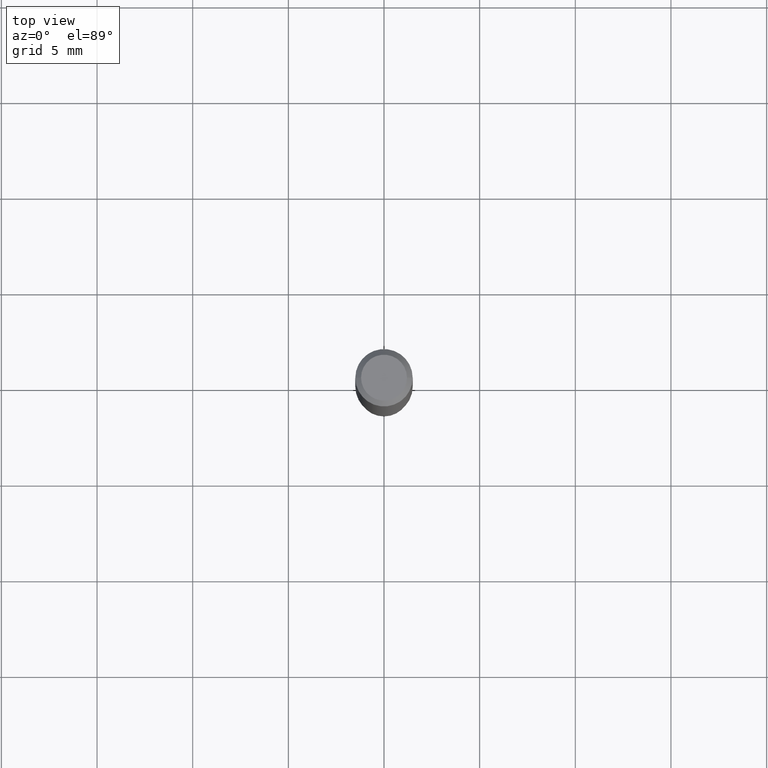
[diagram: clean part render]
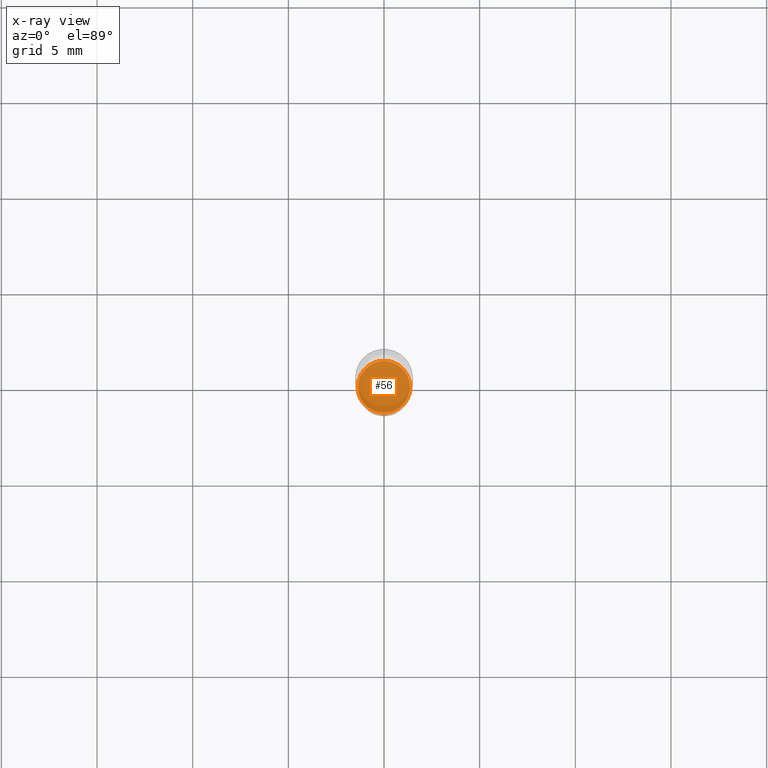
[diagram: x-ray — body ghosted, one internal face saturated and labeled with its STEP entity id]
A machine part, top view, then the same camera in x-ray: the body is ghosted and one INTERNAL B-rep face — a face not visible from any outside direction — is saturated and labeled: STEP entity #56.
In plain terms, the highlighted planar face has unit normal (-0, 0, 1).
Its self-contained STEP definition (entity closure, byte-faithful):
#2 = CARTESIAN_POINT ( 'NONE',  ( -0.05364999999999999630, -3.437570920454417208E-15, -1.094499999999999806 ) ) ;
#9 = EDGE_CURVE ( 'NONE', #127, #132, #482, .T. ) ;
#37 = AXIS2_PLACEMENT_3D ( 'NONE', #113, #451, #221 ) ;
#44 = FACE_OUTER_BOUND ( 'NONE', #438, .T. ) ;
#56 = ADVANCED_FACE ( 'NONE', ( #44 ), #293, .F. ) ;
#113 = CARTESIAN_POINT ( 'NONE',  ( 2.676565608369631794E-29, -3.821426325363822773E-15, -1.094499999999999806 ) ) ;
#127 = VERTEX_POINT ( 'NONE', #266 ) ;
#132 = VERTEX_POINT ( 'NONE', #2 ) ;
#176 = AXIS2_PLACEMENT_3D ( 'NONE', #319, #475, #403 ) ;
#199 = ORIENTED_EDGE ( 'NONE', *, *, #321, .F. ) ;
#221 = DIRECTION ( 'NONE',  ( 1.000000000000000000, -6.982962677686265922E-15, 4.876176775795935793E-29 ) ) ;
#245 = AXIS2_PLACEMENT_3D ( 'NONE', #275, #314, #423 ) ;
#266 = CARTESIAN_POINT ( 'NONE',  ( 0.05364999999999999630, -4.196062273021690850E-15, -1.094499999999999806 ) ) ;
#275 = CARTESIAN_POINT ( 'NONE',  ( 2.676565608369631794E-29, -3.821426325363822773E-15, -1.094499999999999806 ) ) ;
#293 = PLANE ( 'NONE',  #37 ) ;
#314 = DIRECTION ( 'NONE',  ( -2.445468806185136597E-29, 3.491481338843145583E-15, 1.000000000000000000 ) ) ;
#319 = CARTESIAN_POINT ( 'NONE',  ( 2.676565608369631794E-29, -3.821426325363822773E-15, -1.094499999999999806 ) ) ;
#321 = EDGE_CURVE ( 'NONE', #132, #127, #460, .T. ) ;
#403 = DIRECTION ( 'NONE',  ( 1.000000000000000000, -6.982962677686261977E-15, 0.000000000000000000 ) ) ;
#423 = DIRECTION ( 'NONE',  ( 1.000000000000000000, -6.982962677686261977E-15, 0.000000000000000000 ) ) ;
#426 = ORIENTED_EDGE ( 'NONE', *, *, #9, .F. ) ;
#438 = EDGE_LOOP ( 'NONE', ( #426, #199 ) ) ;
#451 = DIRECTION ( 'NONE',  ( -2.438088387897960049E-29, 3.491481338843145188E-15, 1.000000000000000000 ) ) ;
#460 = CIRCLE ( 'NONE', #245, 0.05364999999999999630 ) ;
#475 = DIRECTION ( 'NONE',  ( -2.445468806185136597E-29, 3.491481338843145583E-15, 1.000000000000000000 ) ) ;
#482 = CIRCLE ( 'NONE', #176, 0.05364999999999999630 ) ;